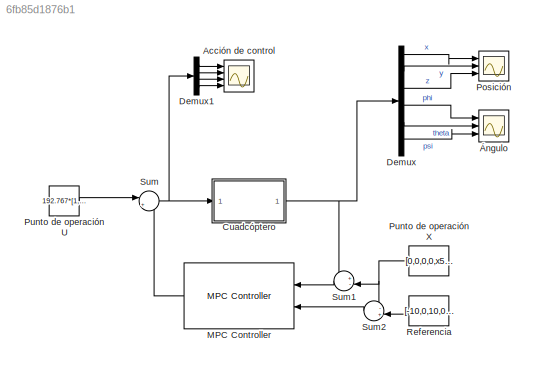
MODEL slx_6fb85d1876b1
KIND model
CONFIG AbsTol = auto
CONFIG FixedStep = auto
CONFIG MaxStep = auto
CONFIG MinStep = auto
CONFIG RelTol = 1e-3
CONFIG SampleTimeConstraint = Unconstrained
CONFIG Solver = ode45
CONFIG SolverMode = Auto
CONFIG SolverName = ode45
CONFIG StartTime = 0.0
CONFIG StopTime = 50
BLOCK [Scope] Acción de control
  Floating = off
  NumInputPorts = 4
  Ports = [4]
  SaveName = ScopeData2
  YMax = 5~5~5~5
  YMin = -5~-5~-5~-5
  ZoomMode = xonly
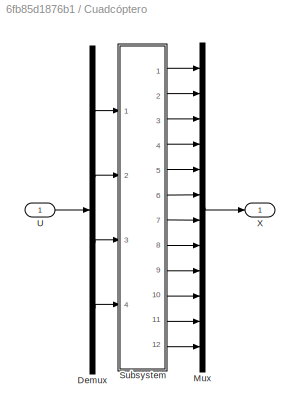
BLOCK [SubSystem] Cuadcóptero
  Ports = [1, 1]
  RequestExecContextInheritance = off
BLOCK [Demux] Cuadcóptero/Demux
  DisplayOption = bar
  Ports = [1, 4]
BLOCK [Mux] Cuadcóptero/Mux
  DisplayOption = bar
  Inputs = 12
  Ports = [12, 1]
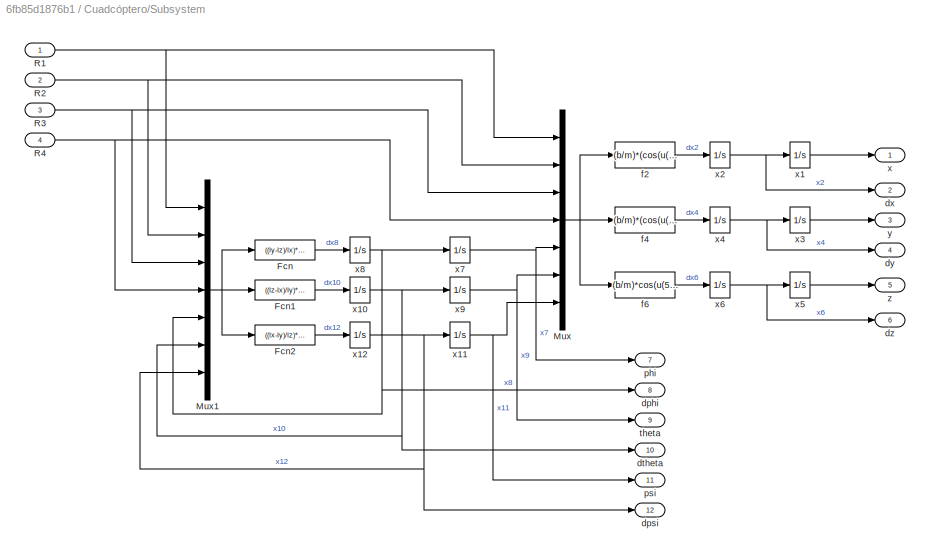
BLOCK [SubSystem] Cuadcóptero/Subsystem
  Ports = [4, 12]
  RequestExecContextInheritance = off
BLOCK [Fcn] Cuadcóptero/Subsystem/Fcn
  Expr = ((Iy-Iz)/Ix)*u(6)*u(7)+(b*L/Ix)*(u(4)^2-u(2)^2)
BLOCK [Fcn] Cuadcóptero/Subsystem/Fcn1
  Expr = ((Iz-Ix)/Iy)*u(5)*u(7)+(b*L/Iy)*(u(3)^2-u(1)^2)
BLOCK [Fcn] Cuadcóptero/Subsystem/Fcn2
  Expr = ((Ix-Iy)/Iz)*u(5)*u(6)+(d/Iz)*(u(1)^2-u(2)^2+u(3)^2-u(4)^2)
BLOCK [Mux] Cuadcóptero/Subsystem/Mux
  DisplayOption = bar
  Inputs = 7
  Ports = [7, 1]
BLOCK [Mux] Cuadcóptero/Subsystem/Mux1
  DisplayOption = bar
  Inputs = 7
  Ports = [7, 1]
BLOCK [Inport] Cuadcóptero/Subsystem/R1
  IconDisplay = Port number
BLOCK [Inport] Cuadcóptero/Subsystem/R2
  IconDisplay = Port number
  Port = 2
BLOCK [Inport] Cuadcóptero/Subsystem/R3
  IconDisplay = Port number
  Port = 3
BLOCK [Inport] Cuadcóptero/Subsystem/R4
  IconDisplay = Port number
  Port = 4
BLOCK [Outport] Cuadcóptero/Subsystem/dphi
  IconDisplay = Port number
  Port = 8
BLOCK [Outport] Cuadcóptero/Subsystem/dpsi
  IconDisplay = Port number
  Port = 12
BLOCK [Outport] Cuadcóptero/Subsystem/dtheta
  IconDisplay = Port number
  Port = 10
BLOCK [Outport] Cuadcóptero/Subsystem/dx
  IconDisplay = Port number
  Port = 2
BLOCK [Outport] Cuadcóptero/Subsystem/dy
  IconDisplay = Port number
  Port = 4
BLOCK [Outport] Cuadcóptero/Subsystem/dz
  IconDisplay = Port number
  Port = 6
BLOCK [Fcn] Cuadcóptero/Subsystem/f2
  Expr = (b/m)*(cos(u(5))*sin(u(6))*cos(u(7))+sin(u(5))*sin(u(7)))*(u(1)^2+u(2)^2+u(3)^2+u(4)^2)
BLOCK [Fcn] Cuadcóptero/Subsystem/f4
  Expr = (b/m)*(cos(u(5))*sin(u(6))*sin(u(7))-sin(u(5))*cos(u(7)))*(u(1)^2+u(2)^2+u(3)^2+u(4)^2)
BLOCK [Fcn] Cuadcóptero/Subsystem/f6
  Expr = (b/m)*cos(u(5))*cos(u(6))*(u(1)^2+u(2)^2+u(3)^2+u(4)^2)-g
BLOCK [Outport] Cuadcóptero/Subsystem/phi
  IconDisplay = Port number
  Port = 7
BLOCK [Outport] Cuadcóptero/Subsystem/psi
  IconDisplay = Port number
  Port = 11
BLOCK [Outport] Cuadcóptero/Subsystem/theta
  IconDisplay = Port number
  Port = 9
BLOCK [Outport] Cuadcóptero/Subsystem/x
  IconDisplay = Port number
BLOCK [Integrator] Cuadcóptero/Subsystem/x1
  InitialCondition = x1_0
  Ports = [1, 1]
BLOCK [Integrator] Cuadcóptero/Subsystem/x10
  InitialCondition = x10_0
  Ports = [1, 1]
BLOCK [Integrator] Cuadcóptero/Subsystem/x11
  InitialCondition = x11_0
  Ports = [1, 1]
BLOCK [Integrator] Cuadcóptero/Subsystem/x12
  InitialCondition = x12_0
  Ports = [1, 1]
BLOCK [Integrator] Cuadcóptero/Subsystem/x2
  InitialCondition = x2_0
  Ports = [1, 1]
BLOCK [Integrator] Cuadcóptero/Subsystem/x3
  InitialCondition = x3_0
  Ports = [1, 1]
BLOCK [Integrator] Cuadcóptero/Subsystem/x4
  InitialCondition = x4_0
  Ports = [1, 1]
BLOCK [Integrator] Cuadcóptero/Subsystem/x5
  InitialCondition = x5_0
  Ports = [1, 1]
BLOCK [Integrator] Cuadcóptero/Subsystem/x6
  InitialCondition = x6_0
  Ports = [1, 1]
BLOCK [Integrator] Cuadcóptero/Subsystem/x7
  InitialCondition = x7_0
  Ports = [1, 1]
BLOCK [Integrator] Cuadcóptero/Subsystem/x8
  InitialCondition = x8_0
  Ports = [1, 1]
BLOCK [Integrator] Cuadcóptero/Subsystem/x9
  InitialCondition = x9_0
  Ports = [1, 1]
BLOCK [Outport] Cuadcóptero/Subsystem/y
  IconDisplay = Port number
  Port = 3
BLOCK [Outport] Cuadcóptero/Subsystem/z
  IconDisplay = Port number
  Port = 5
BLOCK [Inport] Cuadcóptero/U
  IconDisplay = Port number
BLOCK [Outport] Cuadcóptero/X
  IconDisplay = Port number
BLOCK [Demux] Demux
  DisplayOption = bar
  Outputs = 12
  Ports = [1, 12]
BLOCK [Demux] Demux1
  DisplayOption = bar
  Ports = [1, 4]
BLOCK [Reference] MPC Controller  REF=mpclib/MPC Controller  (lib defined in mdl_ae329e0e0455)
  BlockDataType = double
  Ports = [2, 1]
  SCDEnableBlockLinearizationSpecification = on
  SampleTimeInherited = off
  SourceBlock = mpclib/MPC Controller
  SourceType = MPC
  cost_outport = off
  duwt_inport = off
  enable_value = 0
  from_project = off
  is_designfromscratch = 0
  is_multiple = 0
  lims_inport = off
  md_from_ws = off
  md_inport = off
  md_preview = off
  md_signal_name = []
  mpcobj = MPC1
  mv_inport = off
  n_md = 0
  n_mo = 12
  n_mv = 4
  n_ts = 0.05
  project_file = MPCtask.mat
  ref_from_ws = off
  ref_preview = off
  ref_signal_name = []
  return_qpstatus = off
  return_sequence = off
  return_state = off
  return_u0 = off
  rhoeps_inport = off
  state_inport = off
  switch_inport = off
  uref_inport = off
  uwt_inport = off
  ywt_inport = off
BLOCK [Scope] Posición
  Floating = off
  NumInputPorts = 3
  Ports = [3]
  YMax = 5~5~5
  YMin = -5~-5~-5
BLOCK [Constant] Punto de operación U
  Value = 192.767*[1, 1, 1, 1]
BLOCK [Constant] Punto de operación X
  SampleTime = Ts
  Value = [0,0,0,0,x5_0,0,0,0,0,0,0,0]
BLOCK [Constant] Referencia
  SampleTime = Ts
  Value = [-10,0,10,0,10,0,0,0,0,0,0,0]
BLOCK [Sum] Sum
  IconShape = round
  InputSameDT = off
  Inputs = |++
  OutDataTypeStr = Inherit: Inherit via internal rule
  Ports = [2, 1]
  SaturateOnIntegerOverflow = off
BLOCK [Sum] Sum1
  IconShape = round
  InputSameDT = off
  Inputs = +-|
  OutDataTypeStr = Inherit: Inherit via internal rule
  Ports = [2, 1]
  SaturateOnIntegerOverflow = off
BLOCK [Sum] Sum2
  IconShape = round
  InputSameDT = off
  Inputs = -+|
  OutDataTypeStr = Inherit: Inherit via internal rule
  Ports = [2, 1]
  SaturateOnIntegerOverflow = off
BLOCK [Scope] Ángulo
  Floating = off
  NumInputPorts = 3
  Ports = [3]
  SaveName = ScopeData1
  YMax = 5~5~5
  YMin = -5~-5~-5
LINE Cuadcóptero/Demux:1 -> Cuadcóptero/Subsystem:1
LINE Cuadcóptero/Demux:2 -> Cuadcóptero/Subsystem:2
LINE Cuadcóptero/Demux:3 -> Cuadcóptero/Subsystem:3
LINE Cuadcóptero/Demux:4 -> Cuadcóptero/Subsystem:4
LINE Cuadcóptero/Mux:1 -> Cuadcóptero/X:1
LINE Cuadcóptero/Subsystem/Fcn1:1 -> Cuadcóptero/Subsystem/x10:1
LINE Cuadcóptero/Subsystem/Fcn2:1 -> Cuadcóptero/Subsystem/x12:1
LINE Cuadcóptero/Subsystem/Fcn:1 -> Cuadcóptero/Subsystem/x8:1
NET Cuadcóptero/Subsystem/Mux1:1 -> Cuadcóptero/Subsystem/Fcn1:1, Cuadcóptero/Subsystem/Fcn2:1, Cuadcóptero/Subsystem/Fcn:1
NET Cuadcóptero/Subsystem/Mux:1 -> Cuadcóptero/Subsystem/f2:1, Cuadcóptero/Subsystem/f4:1, Cuadcóptero/Subsystem/f6:1
NET Cuadcóptero/Subsystem/R1:1 -> Cuadcóptero/Subsystem/Mux1:1, Cuadcóptero/Subsystem/Mux:1
NET Cuadcóptero/Subsystem/R2:1 -> Cuadcóptero/Subsystem/Mux1:2, Cuadcóptero/Subsystem/Mux:2
NET Cuadcóptero/Subsystem/R3:1 -> Cuadcóptero/Subsystem/Mux1:3, Cuadcóptero/Subsystem/Mux:3
NET Cuadcóptero/Subsystem/R4:1 -> Cuadcóptero/Subsystem/Mux1:4, Cuadcóptero/Subsystem/Mux:4
LINE Cuadcóptero/Subsystem/f2:1 -> Cuadcóptero/Subsystem/x2:1
LINE Cuadcóptero/Subsystem/f4:1 -> Cuadcóptero/Subsystem/x4:1
LINE Cuadcóptero/Subsystem/f6:1 -> Cuadcóptero/Subsystem/x6:1
NET Cuadcóptero/Subsystem/x10:1 -> Cuadcóptero/Subsystem/Mux1:6, Cuadcóptero/Subsystem/dtheta:1, Cuadcóptero/Subsystem/x9:1
NET Cuadcóptero/Subsystem/x11:1 -> Cuadcóptero/Subsystem/Mux:7, Cuadcóptero/Subsystem/psi:1
NET Cuadcóptero/Subsystem/x12:1 -> Cuadcóptero/Subsystem/Mux1:7, Cuadcóptero/Subsystem/dpsi:1, Cuadcóptero/Subsystem/x11:1
LINE Cuadcóptero/Subsystem/x1:1 -> Cuadcóptero/Subsystem/x:1
NET Cuadcóptero/Subsystem/x2:1 -> Cuadcóptero/Subsystem/dx:1, Cuadcóptero/Subsystem/x1:1
LINE Cuadcóptero/Subsystem/x3:1 -> Cuadcóptero/Subsystem/y:1
NET Cuadcóptero/Subsystem/x4:1 -> Cuadcóptero/Subsystem/dy:1, Cuadcóptero/Subsystem/x3:1
LINE Cuadcóptero/Subsystem/x5:1 -> Cuadcóptero/Subsystem/z:1
NET Cuadcóptero/Subsystem/x6:1 -> Cuadcóptero/Subsystem/dz:1, Cuadcóptero/Subsystem/x5:1
NET Cuadcóptero/Subsystem/x7:1 -> Cuadcóptero/Subsystem/Mux:5, Cuadcóptero/Subsystem/phi:1
NET Cuadcóptero/Subsystem/x8:1 -> Cuadcóptero/Subsystem/Mux1:5, Cuadcóptero/Subsystem/dphi:1, Cuadcóptero/Subsystem/x7:1
NET Cuadcóptero/Subsystem/x9:1 -> Cuadcóptero/Subsystem/Mux:6, Cuadcóptero/Subsystem/theta:1
LINE Cuadcóptero/Subsystem:1 -> Cuadcóptero/Mux:1
LINE Cuadcóptero/Subsystem:10 -> Cuadcóptero/Mux:10
LINE Cuadcóptero/Subsystem:11 -> Cuadcóptero/Mux:11
LINE Cuadcóptero/Subsystem:12 -> Cuadcóptero/Mux:12
LINE Cuadcóptero/Subsystem:2 -> Cuadcóptero/Mux:2
LINE Cuadcóptero/Subsystem:3 -> Cuadcóptero/Mux:3
LINE Cuadcóptero/Subsystem:4 -> Cuadcóptero/Mux:4
LINE Cuadcóptero/Subsystem:5 -> Cuadcóptero/Mux:5
LINE Cuadcóptero/Subsystem:6 -> Cuadcóptero/Mux:6
LINE Cuadcóptero/Subsystem:7 -> Cuadcóptero/Mux:7
LINE Cuadcóptero/Subsystem:8 -> Cuadcóptero/Mux:8
LINE Cuadcóptero/Subsystem:9 -> Cuadcóptero/Mux:9
LINE Cuadcóptero/U:1 -> Cuadcóptero/Demux:1
NET Cuadcóptero:1 -> Demux:1, Sum1:1
LINE Demux1:1 -> Acción de control:1
LINE Demux1:2 -> Acción de control:2
LINE Demux1:3 -> Acción de control:3
LINE Demux1:4 -> Acción de control:4
LINE Demux:1 -> Posición:1
LINE Demux:11 -> Ángulo:3
LINE Demux:3 -> Posición:2
LINE Demux:5 -> Posición:3
LINE Demux:7 -> Ángulo:1
LINE Demux:9 -> Ángulo:2
LINE MPC Controller:1 -> Sum:2
LINE Punto de operación U:1 -> Sum:1
NET Punto de operación X:1 -> Sum1:2, Sum2:1
LINE Referencia:1 -> Sum2:2
LINE Sum1:1 -> MPC Controller:1
LINE Sum2:1 -> MPC Controller:2
NET Sum:1 -> Cuadcóptero:1, Demux1:1
note: NET lines group one-source signal fan-out (src -> all destinations, sorted); 1:1 wires keep LINE
